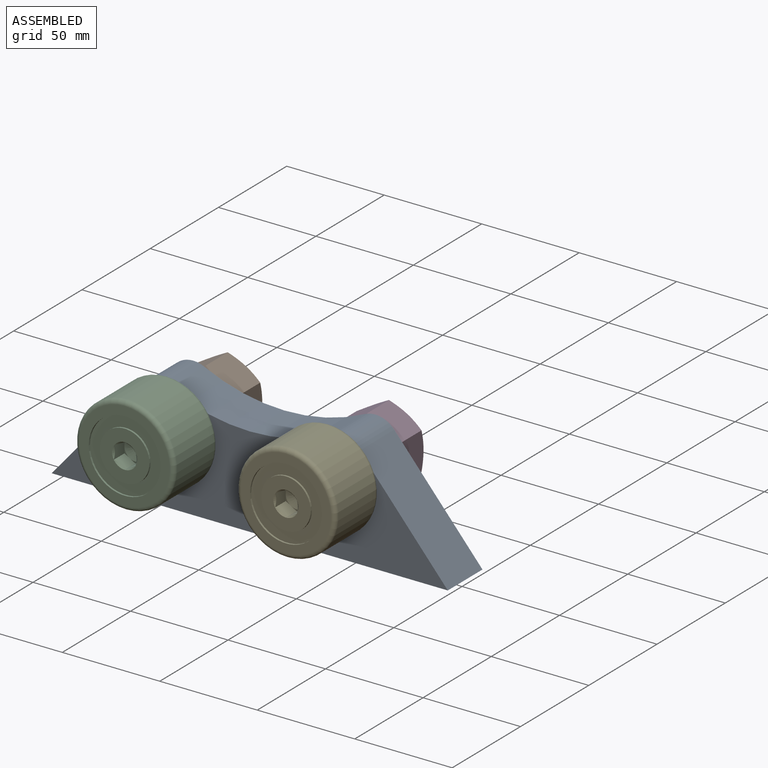
[diagram: assembled view]
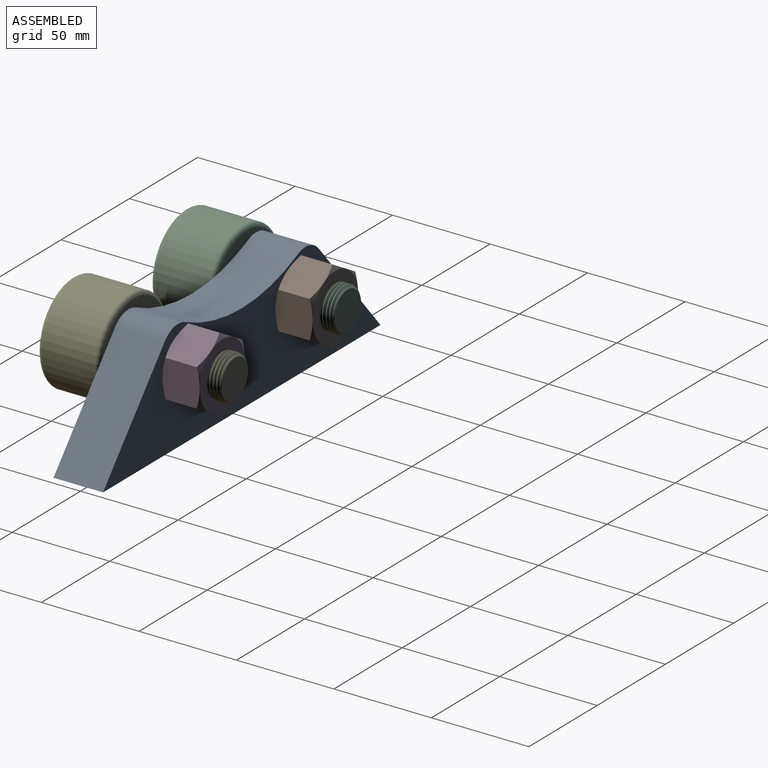
[diagram: assembled view, second angle]
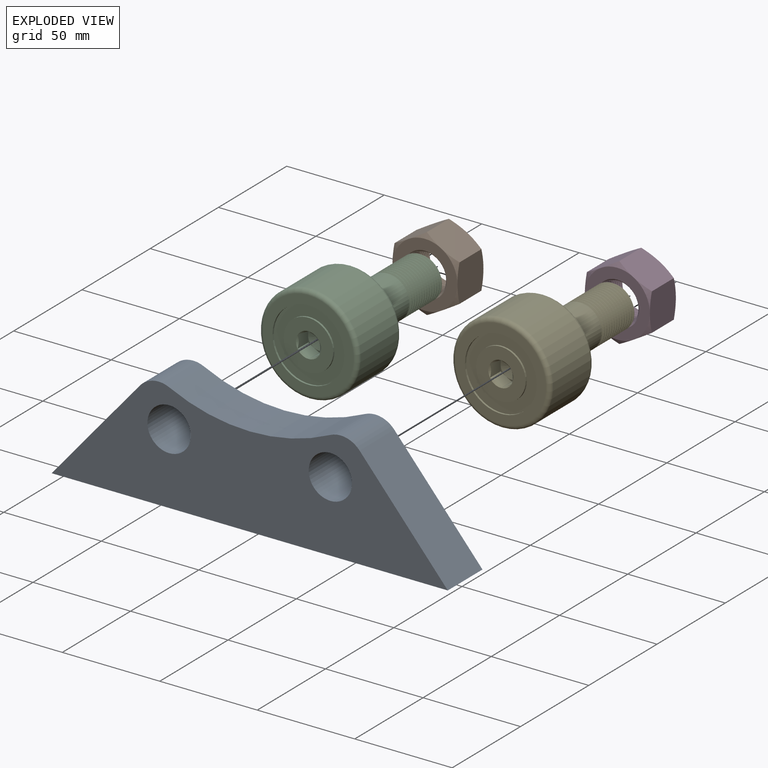
[diagram: exploded view]
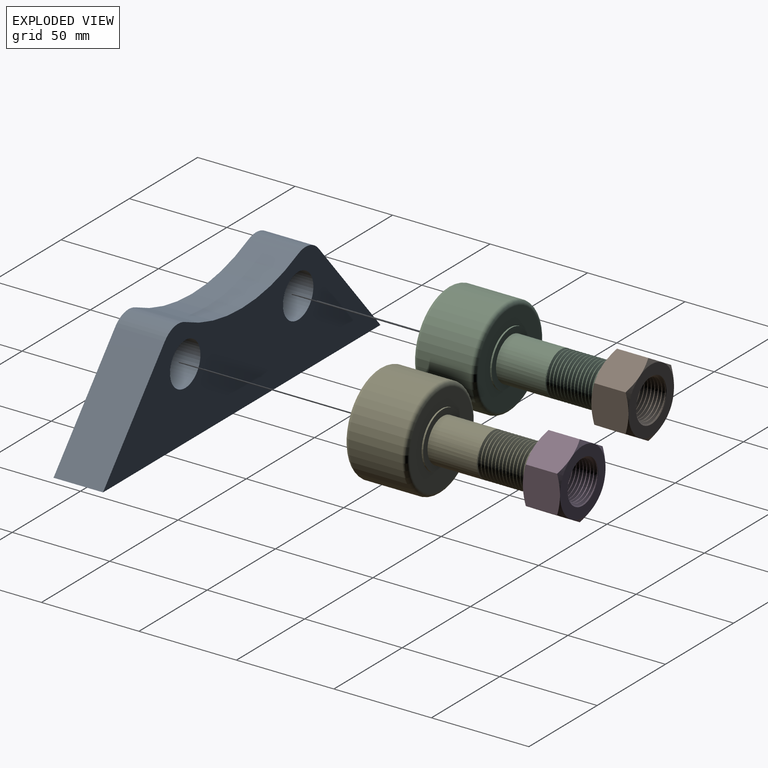
[diagram: exploded view, second angle]
ASSEMBLY  parts=5 mates=4
PART A: 10 faces, bbox 203.2x25.4x57.2 mm
  f0: plane 52.73x45.25mm, normal (-0.76,0,0.65), area 1765mm2, adj f1,f6,f7,f8
  f1: plane 203.2x25.4mm, normal (0,0,-1), area 5161.3mm2, adj f0,f2,f6,f7
  f2: plane 52.73x45.25mm, normal (0.76,0,0.65), area 1765mm2, adj f1,f6,f7,f9
  f3: cylinder r=11.11mm len=25.4mm, axis (0,1,0), area 1773.5mm2, adj f6,f7
  f4: cylinder r=95.25mm len=82.43mm, axis (0,1,0), area 2165.3mm2, adj f6,f7,f8,f9
  f5: cylinder r=11.11mm len=25.4mm, axis (0,1,0), area 1773.5mm2, adj f6,f7
  f6: plane 203.2x57.16mm, normal (0,-1,0), area 7398.3mm2, adj f0,f1,f2,f3,f4,f5,f8,f9
  f7: plane 203.2x57.16mm, normal (0,1,0), area 7398.3mm2, adj f0,f1,f2,f3,f4,f5,f8,f9
  f8: cylinder r=12.7mm len=25.4mm, axis (0,1,0), area 422.3mm2, adj f0,f4,f6,f7
  f9: cylinder r=12.7mm len=25.4mm, axis (0,1,0), area 422.3mm2, adj f2,f4,f6,f7
PART B: 26 faces, bbox 40.1x40.1x24.1 mm
  f0: cone r=10.66mm half-angle=45deg, axis (0,0,-1), area 55.9mm2, adj f10,f11,f12,f13
  f1: cone r=10.66mm half-angle=45deg, axis (0,0,1), area 55.7mm2, adj f3,f11,f12,f13
  f2: cylinder r=11.11mm len=22.23mm, axis (0,0,-1), area 166.3mm2, adj f3,f10,f11,f13
  f3: plane 33.34x33.34mm, normal (0,0,1), area 484.9mm2, adj f1,f2,f14,f15,f16,f17,f18,f19
  f4: plane 20.63x18.25mm, normal (-0.5,0.87,0), area 347.1mm2, adj f5,f9,f14,f19,f21,f22
  f5: plane 20.84x20.64mm, normal (-1,0,0), area 347mm2, adj f4,f6,f18,f19,f22,f23
  f6: plane 20.63x18.25mm, normal (-0.5,-0.87,0), area 347.1mm2, adj f5,f7,f17,f18,f23,f24
  f7: plane 20.63x18.25mm, normal (0.5,-0.87,0), area 347.1mm2, adj f6,f8,f16,f17,f24,f25
  f8: plane 20.84x20.64mm, normal (1,0,0), area 347mm2, adj f7,f9,f15,f16,f20,f25
  f9: plane 20.63x18.25mm, normal (0.5,0.87,0), area 347mm2, adj f4,f8,f14,f15,f20,f21
  f10: plane 33.34x33.34mm, normal (0,0,-1), area 484.9mm2, adj f0,f2,f20,f21,f22,f23,f24,f25
  f11: bspline ~22.22x22.21mm, area 822.3mm2, adj f0,f1,f2,f12
  f12: cylinder r=9.93mm len=19.87mm, axis (0,0,1), area 90.3mm2, adj f0,f1,f11,f13
  f13: bspline ~22.23x21.66mm, area 888.5mm2, adj f0,f1,f2,f12
  f14: cone r=16.67mm half-angle=60deg, axis (0,0,-1), area 27.3mm2, adj f3,f4,f9
  f15: cone r=16.67mm half-angle=60deg, axis (0,0,-1), area 27.3mm2, adj f3,f8,f9
  f16: cone r=16.67mm half-angle=60deg, axis (0,0,-1), area 27.3mm2, adj f3,f7,f8
  f17: cone r=16.67mm half-angle=60deg, axis (0,0,-1), area 27.3mm2, adj f3,f6,f7
  f18: cone r=16.67mm half-angle=60deg, axis (0,0,-1), area 27.3mm2, adj f3,f5,f6
  f19: cone r=16.67mm half-angle=60deg, axis (0,0,-1), area 27.3mm2, adj f3,f4,f5
  f20: cone r=16.67mm half-angle=60deg, axis (0,0,1), area 27.3mm2, adj f8,f9,f10
  f21: cone r=16.67mm half-angle=60deg, axis (0,0,1), area 27.3mm2, adj f4,f9,f10
  f22: cone r=16.67mm half-angle=60deg, axis (0,0,1), area 27.3mm2, adj f4,f5,f10
  f23: cone r=16.67mm half-angle=60deg, axis (0,0,1), area 27.3mm2, adj f5,f6,f10
  f24: cone r=16.67mm half-angle=60deg, axis (0,0,1), area 27.3mm2, adj f6,f7,f10
  f25: cone r=16.67mm half-angle=60deg, axis (0,0,1), area 27.3mm2, adj f7,f8,f10
PART C: 50 faces, bbox 57.4x57.4x86.3 mm
  f0: torus R=23.18mm, axis (0,0,1), area 539.4mm2, adj f7,f28
  f1: torus R=23.18mm, axis (0,0,-1), area 539.4mm2, adj f7,f29
  f2: cone r=5.56mm half-angle=60deg, axis (0,0,1), area 112mm2, adj f23,f24,f25,f26,f27,f43
  f3: cone r=6.42mm half-angle=45deg, axis (0,0,1), area 3.9mm2, adj f37,f46
  f4: cylinder r=12.7mm len=25.4mm, axis (0,0,1), area 76mm2, adj f36,f37
  f5: cylinder r=18.41mm len=36.83mm, axis (0,0,1), area 110.2mm2, adj f28,f36
  f6: cylinder r=14.29mm len=28.58mm, axis (0,0,-1), area 71.3mm2, adj f29,f30
  f7: cylinder r=25.4mm len=50.8mm, axis (0,0,-1), area 4357.7mm2, adj f0,f1
  f8: cone r=9.75mm half-angle=45deg, axis (0,0,1), area 70.5mm2, adj f22,f31,f32,f33,f34
  f9: cylinder r=11.11mm len=27.21mm, axis (0,0,-1), area 1788.3mm2, adj f10,f30,f32,f34,f35
  f10: cylinder r=11.11mm len=22.23mm, axis (0,0,-1), area 15.8mm2, adj f9,f11,f32,f34
  f11: cylinder r=11.11mm len=22.23mm, axis (0,0,-1), area 15.8mm2, adj f10,f12,f32,f34
  f12: cylinder r=11.11mm len=22.23mm, axis (0,0,-1), area 15.8mm2, adj f11,f13,f32,f34
  f13: cylinder r=11.11mm len=22.23mm, axis (0,0,-1), area 15.8mm2, adj f12,f14,f32,f34
  f14: cylinder r=11.11mm len=22.23mm, axis (0,0,-1), area 15.8mm2, adj f13,f15,f32,f34
  f15: cylinder r=11.11mm len=22.23mm, axis (0,0,-1), area 15.8mm2, adj f14,f16,f32,f34
  f16: cylinder r=11.11mm len=22.23mm, axis (0,0,-1), area 15.8mm2, adj f15,f17,f32,f34
  f17: cylinder r=11.11mm len=22.23mm, axis (0,0,-1), area 15.8mm2, adj f16,f18,f32,f34
  f18: cylinder r=11.11mm len=22.23mm, axis (0,0,-1), area 15.8mm2, adj f17,f19,f32,f34
  f19: cylinder r=11.11mm len=22.23mm, axis (0,0,-1), area 15.8mm2, adj f18,f20,f32,f34
  f20: cylinder r=11.11mm len=22.23mm, axis (0,0,-1), area 15.8mm2, adj f19,f21,f32,f34
  f21: cylinder r=11.11mm len=22.23mm, axis (0,0,-1), area 15.8mm2, adj f20,f22,f32,f34
  f22: cylinder r=11.11mm len=18.96mm, axis (0,0,-1), area 4.9mm2, adj f8,f21,f32,f34
  f23: plane 4.81x2.78mm, normal (0,0,1), area 1.7mm2, adj f2,f46,f47
  f24: plane 5.56x1.6mm, normal (0,0,1), area 1.7mm2, adj f2,f47,f48
  f25: plane 4.81x2.78mm, normal (0,0,1), area 1.7mm2, adj f2,f48,f49
  f26: plane 4.81x2.78mm, normal (0,0,1), area 1.7mm2, adj f2,f44,f49
  f27: plane 5.56x1.6mm, normal (0,0,1), area 1.7mm2, adj f2,f44,f45
  f28: plane 46.36x46.36mm, normal (0,0,1), area 622.3mm2, adj f0,f5
  f29: plane 46.36x46.36mm, normal (0,0,-1), area 1046.4mm2, adj f1,f6
  f30: plane 28.58x28.58mm, normal (0,0,-1), area 253.4mm2, adj f6,f9
  f31: plane 19.5x19.5mm, normal (0,0,-1), area 298.8mm2, adj f8
  f32: bspline ~26.62x23.37mm, area 1221.1mm2, adj f8,f9,f10,f11,f12,f13,f14,f15
  f33: cylinder r=9.93mm len=25.22mm, axis (0,0,-1), area 161.8mm2, adj f8,f32,f34,f35
  f34: bspline ~25.9x22.21mm, area 1221.8mm2, adj f8,f9,f10,f11,f12,f13,f14,f15
  f35: plane 22.93x22.93mm, normal (0,0,-1), area 39.5mm2, adj f9,f32,f33,f34
  f36: plane 36.83x36.83mm, normal (0,0,1), area 558.6mm2, adj f4,f5
  f37: plane 27.49x27.49mm, normal (0,0,1), area 377.4mm2, adj f3,f4,f38,f39,f40,f41,f42
  f38: cone r=6.42mm half-angle=45deg, axis (0,0,1), area 0mm2, adj f37,f44
  f39: cone r=6.42mm half-angle=45deg, axis (0,0,1), area 0mm2, adj f37,f45
  f40: cone r=6.42mm half-angle=45deg, axis (0,0,1), area 0mm2, adj f37,f47
  f41: cone r=6.42mm half-angle=45deg, axis (0,0,1), area 0mm2, adj f37,f48
  f42: cone r=6.42mm half-angle=45deg, axis (0,0,1), area 0mm2, adj f37,f49
  f43: plane 4.81x2.78mm, normal (0,0,1), area 1.7mm2, adj f2,f45,f46
  f44: plane 10.21x7.99mm, normal (0.5,0.87,0), area 46.3mm2, adj f26,f27,f38,f45,f49
  f45: plane 10.21x7.99mm, normal (-0.5,0.87,0), area 46.3mm2, adj f27,f39,f43,f44,f46
  f46: plane 8.4x7.04mm, normal (-1,0,0), area 46.3mm2, adj f3,f23,f43,f45,f47
  f47: plane 10.21x7.99mm, normal (-0.5,-0.87,0), area 46.3mm2, adj f23,f24,f40,f46,f48
  f48: plane 10.21x7.99mm, normal (0.5,-0.87,0), area 46.2mm2, adj f24,f25,f41,f47,f49
  f49: plane 10.21x8.85mm, normal (1,0,0), area 46.2mm2, adj f25,f26,f42,f44,f48
PART D: same geometry as B
PART E: same geometry as C
PLACE A t=(0,12.7,141.78)mm fixed
PLACE B rot(axis=(1,0,0),90deg) t=(-41.36,22.23,36.51)mm
PLACE C rot(axis=(1,0,0),90deg) t=(-41.36,-45.24,36.51)mm
PLACE D rot(axis=(-1,0,0),90deg) t=(41.36,22.23,36.51)mm
PLACE E rot(axis=(1,0,0),90deg) t=(41.36,-45.24,36.51)mm
MATE revolute B.f2 <-> A.f3  axis (0,-1,0) through (-41.36,12.7,36.51)mm
MATE revolute C.f6 <-> A.f3  axis (0,1,0) through (-41.36,-12.7,36.51)mm
MATE revolute E.f6 <-> A.f5  axis (0,1,0) through (41.36,-12.7,36.51)mm
MATE revolute D.f2 <-> A.f5  axis (0,-1,0) through (41.36,12.7,36.51)mm
